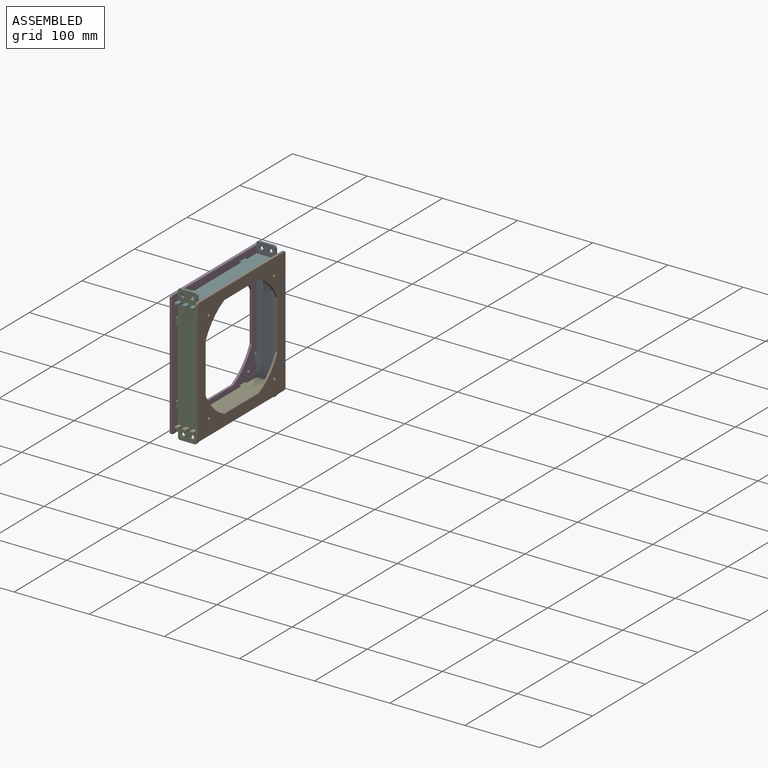
[diagram: assembled view]
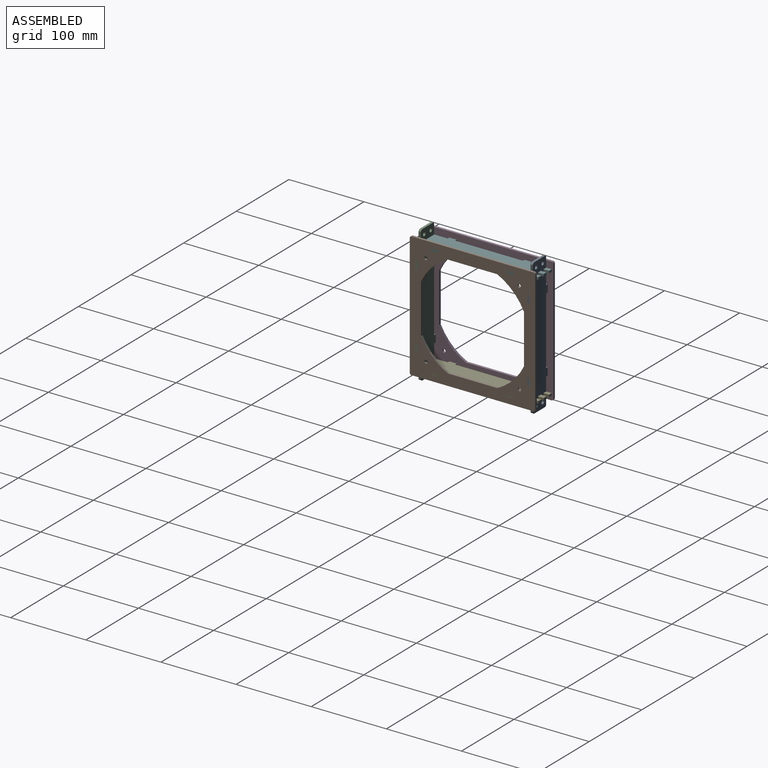
[diagram: assembled view, second angle]
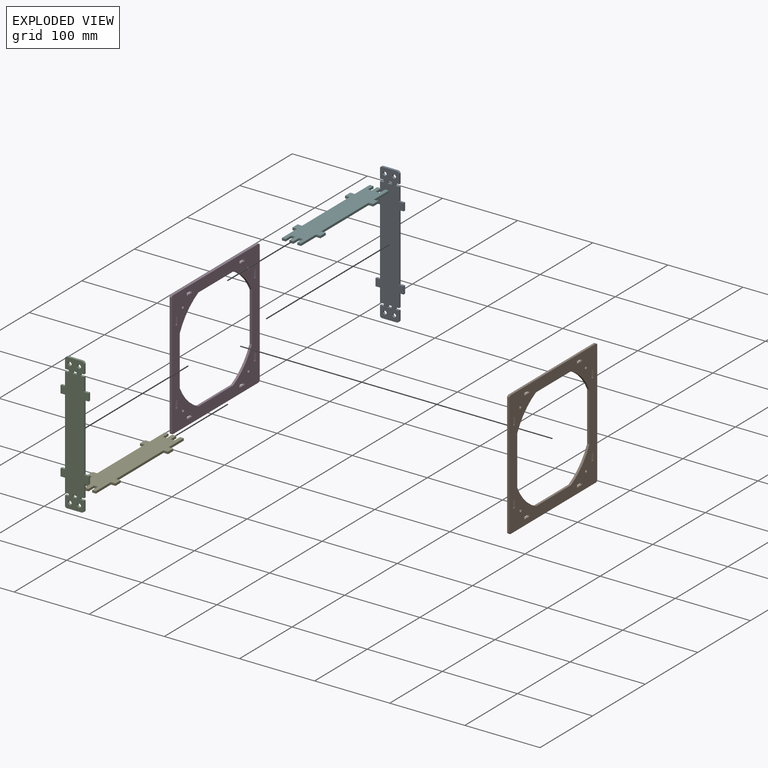
[diagram: exploded view]
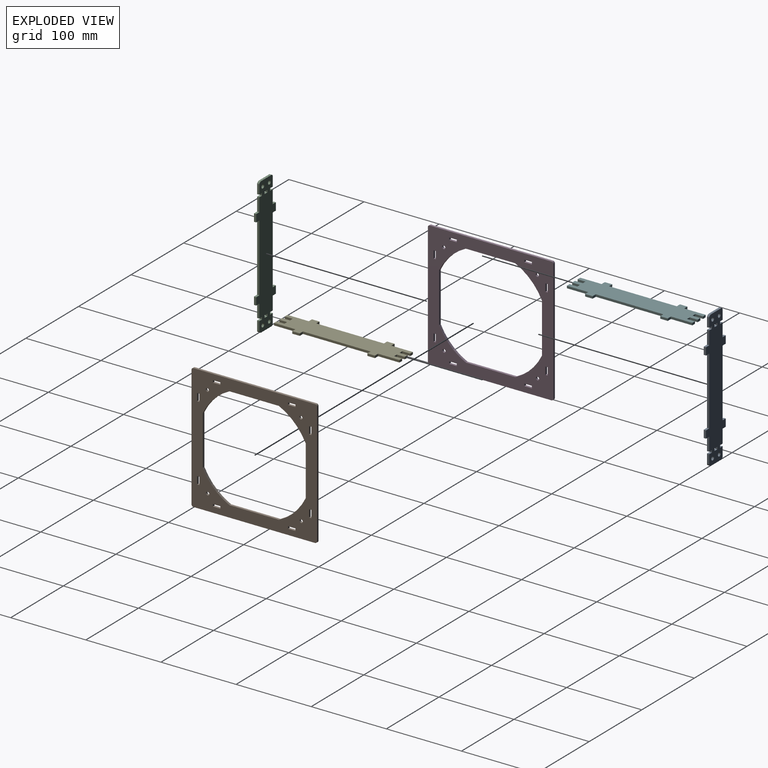
[diagram: exploded view, second angle]
ASSEMBLY  parts=6 mates=6
PART A: 54 faces, bbox 37.4x182.1x3 mm
  f0: plane 5.4x3mm, normal (0,-1,0), area 16.2mm2, adj f1,f46,f52,f53
  f1: plane 3x3mm, normal (-1,0,0), area 9mm2, adj f0,f2,f52,f53
  f2: plane 5.4x3mm, normal (0,1,0), area 16.2mm2, adj f1,f46,f52,f53
  f3: plane 12.56x3mm, normal (1,0,0), area 37.7mm2, adj f4,f47,f52,f53
  f4: plane 5x3mm, normal (0,1,0), area 15mm2, adj f3,f5,f52,f53
  f5: plane 3x3mm, normal (1,0,0), area 9mm2, adj f4,f6,f52,f53
  f6: plane 5x3mm, normal (0,-1,0), area 15mm2, adj f5,f7,f52,f53
  f7: plane 18x3mm, normal (1,0,0), area 54mm2, adj f6,f8,f52,f53
  f8: plane 6x3mm, normal (0,-1,0), area 18mm2, adj f7,f9,f52,f53
  f9: plane 10x3mm, normal (1,0,0), area 30mm2, adj f8,f10,f52,f53
  f10: plane 6x3mm, normal (0,1,0), area 18mm2, adj f9,f11,f52,f53
  f11: plane 90x3mm, normal (1,0,0), area 270mm2, adj f10,f12,f52,f53
  f12: plane 6x3mm, normal (0,-1,0), area 18mm2, adj f11,f13,f52,f53
  f13: plane 10x3mm, normal (1,0,0), area 30mm2, adj f12,f14,f52,f53
  f14: plane 6x3mm, normal (0,1,0), area 18mm2, adj f13,f15,f52,f53
  f15: plane 18x3mm, normal (1,0,0), area 54mm2, adj f14,f16,f52,f53
  f16: plane 5x3mm, normal (0,1,0), area 15mm2, adj f15,f17,f52,f53
  f17: plane 3x3mm, normal (1,0,0), area 9mm2, adj f16,f18,f52,f53
  f18: plane 5x3mm, normal (0,-1,0), area 15mm2, adj f17,f19,f52,f53
  f19: plane 12.56x3mm, normal (1,0,0), area 37.7mm2, adj f18,f20,f52,f53
  f20: cylinder r=4.02mm len=3mm, axis (0,0,-1), area 12mm2, adj f19,f21,f52,f53
  f21: plane 20x3mm, normal (0,1,0), area 60mm2, adj f20,f22,f52,f53
  f22: cylinder r=2.5mm len=3mm, axis (0,0,-1), area 11.8mm2, adj f21,f23,f52,f53
  f23: plane 12.56x3mm, normal (-1,0,0), area 37.7mm2, adj f22,f24,f52,f53
  f24: plane 5x3mm, normal (0,-1,0), area 15mm2, adj f23,f25,f52,f53
  f25: plane 3x3mm, normal (-1,0,0), area 9mm2, adj f24,f26,f52,f53
  f26: plane 5x3mm, normal (0,1,0), area 15mm2, adj f25,f27,f52,f53
  f27: plane 18x3mm, normal (-1,0,0), area 54mm2, adj f26,f28,f52,f53
  f28: plane 6x3mm, normal (0,1,0), area 18mm2, adj f27,f29,f52,f53
  f29: plane 10x3mm, normal (-1,0,0), area 30mm2, adj f28,f30,f52,f53
  f30: plane 6x3mm, normal (0,-1,0), area 18mm2, adj f29,f31,f52,f53
  f31: plane 90x3mm, normal (-1,0,0), area 270mm2, adj f30,f32,f52,f53
  f32: plane 6x3mm, normal (0,1,0), area 18mm2, adj f31,f33,f52,f53
  f33: plane 10x3mm, normal (-1,0,0), area 30mm2, adj f32,f34,f52,f53
  f34: plane 6x3mm, normal (0,-1,0), area 18mm2, adj f33,f35,f52,f53
  f35: plane 18x3mm, normal (-1,0,0), area 54mm2, adj f34,f36,f52,f53
  f36: plane 5x3mm, normal (0,-1,0), area 15mm2, adj f35,f37,f52,f53
  f37: plane 3x3mm, normal (-1,0,0), area 9mm2, adj f36,f38,f52,f53
  f38: plane 5x3mm, normal (0,1,0), area 15mm2, adj f37,f39,f52,f53
  f39: plane 12.56x3mm, normal (-1,0,0), area 37.7mm2, adj f38,f40,f52,f53
  f40: cylinder r=2.5mm len=3mm, axis (0,0,-1), area 11.8mm2, adj f39,f41,f52,f53
  f41: plane 20x3mm, normal (0,-1,0), area 60mm2, adj f40,f47,f52,f53
  f42: plane 5.4x3mm, normal (0,-1,0), area 16.2mm2, adj f43,f48,f52,f53
  f43: plane 3x3mm, normal (-1,0,0), area 9mm2, adj f42,f44,f52,f53
  f44: plane 5.4x3mm, normal (0,1,0), area 16.2mm2, adj f43,f48,f52,f53
  f45: cylinder r=2.5mm len=5mm, axis (0,0,-1), area 47.1mm2, adj f52,f53
  f46: plane 3x3mm, normal (1,0,0), area 9mm2, adj f0,f2,f52,f53
  f47: cylinder r=4.02mm len=3mm, axis (0,0,-1), area 12mm2, adj f3,f41,f52,f53
  f48: plane 3x3mm, normal (1,0,0), area 9mm2, adj f42,f44,f52,f53
  f49: cylinder r=2.5mm len=5mm, axis (0,0,-1), area 47.1mm2, adj f52,f53
  f50: cylinder r=2.5mm len=5mm, axis (0,0,-1), area 47.1mm2, adj f52,f53
  f51: cylinder r=2.5mm len=5mm, axis (0,0,-1), area 47.1mm2, adj f52,f53
  f52: plane 182.13x37.4mm, normal (0,0,1), area 4687.6mm2, adj f0,f1,f2,f3,f4,f5,f6,f7
  f53: plane 182.13x37.4mm, normal (0,0,-1), area 4687.6mm2, adj f0,f1,f2,f3,f4,f5,f6,f7
PART B: 54 faces, bbox 167x167x3 mm
  f0: plane 3x3mm, normal (1,0,0), area 9mm2, adj f1,f41,f52,f53
  f1: plane 10x3mm, normal (0,-1,0), area 30mm2, adj f0,f2,f52,f53
  f2: plane 3x3mm, normal (-1,0,0), area 9mm2, adj f1,f41,f52,f53
  f3: plane 3x3mm, normal (1,0,0), area 9mm2, adj f4,f42,f52,f53
  f4: plane 10x3mm, normal (0,-1,0), area 30mm2, adj f3,f5,f52,f53
  f5: plane 3x3mm, normal (-1,0,0), area 9mm2, adj f4,f42,f52,f53
  f6: plane 3x3mm, normal (1,0,0), area 9mm2, adj f7,f43,f52,f53
  f7: plane 10x3mm, normal (0,-1,0), area 30mm2, adj f6,f8,f52,f53
  f8: plane 3x3mm, normal (-1,0,0), area 9mm2, adj f7,f43,f52,f53
  f9: plane 10x3mm, normal (1,0,0), area 30mm2, adj f10,f44,f52,f53
  f10: plane 3x3mm, normal (0,-1,0), area 9mm2, adj f9,f11,f52,f53
  f11: plane 10x3mm, normal (-1,0,0), area 30mm2, adj f10,f44,f52,f53
  f12: cylinder r=2.5mm len=3mm, axis (0,0,-1), area 11.8mm2, adj f13,f45,f52,f53
  f13: plane 162x3mm, normal (0,-1,0), area 486mm2, adj f12,f14,f52,f53
  f14: cylinder r=2.5mm len=3mm, axis (0,0,-1), area 11.8mm2, adj f13,f15,f52,f53
  f15: plane 162x3mm, normal (1,0,0), area 486mm2, adj f14,f16,f52,f53
  f16: cylinder r=2.5mm len=3mm, axis (0,0,-1), area 11.8mm2, adj f15,f17,f52,f53
  f17: plane 162x3mm, normal (0,1,0), area 486mm2, adj f16,f18,f52,f53
  f18: cylinder r=2.5mm len=3mm, axis (0,0,-1), area 11.8mm2, adj f17,f45,f52,f53
  f19: plane 3x3mm, normal (0,1,0), area 9mm2, adj f20,f46,f52,f53
  f20: plane 10x3mm, normal (1,0,0), area 30mm2, adj f19,f21,f52,f53
  f21: plane 3x3mm, normal (0,-1,0), area 9mm2, adj f20,f46,f52,f53
  f22: plane 3x3mm, normal (0,1,0), area 9mm2, adj f23,f47,f52,f53
  f23: plane 10x3mm, normal (1,0,0), area 30mm2, adj f22,f24,f52,f53
  f24: plane 3x3mm, normal (0,-1,0), area 9mm2, adj f23,f47,f52,f53
  f25: plane 3x3mm, normal (0,1,0), area 9mm2, adj f26,f48,f52,f53
  f26: plane 10x3mm, normal (1,0,0), area 30mm2, adj f25,f27,f52,f53
  f27: plane 3x3mm, normal (0,-1,0), area 9mm2, adj f26,f48,f52,f53
  f28: plane 10x3mm, normal (0,1,0), area 30mm2, adj f29,f49,f52,f53
  f29: plane 3x3mm, normal (1,0,0), area 9mm2, adj f28,f30,f52,f53
  f30: plane 10x3mm, normal (0,-1,0), area 30mm2, adj f29,f49,f52,f53
  f31: cylinder r=76mm len=35.58mm, axis (0,0,-1), area 153.9mm2, adj f32,f50,f52,f53
  f32: plane 65.84x3mm, normal (0,1,0), area 197.5mm2, adj f31,f33,f52,f53
  f33: cylinder r=76mm len=35.58mm, axis (0,0,-1), area 153.9mm2, adj f32,f34,f52,f53
  f34: plane 65.84x3mm, normal (1,0,0), area 197.5mm2, adj f33,f35,f52,f53
  f35: cylinder r=76mm len=35.58mm, axis (0,0,-1), area 153.9mm2, adj f34,f36,f52,f53
  f36: plane 65.84x3mm, normal (0,-1,0), area 197.5mm2, adj f35,f37,f52,f53
  f37: cylinder r=76mm len=35.58mm, axis (0,0,-1), area 153.9mm2, adj f36,f50,f52,f53
  f38: cylinder r=2.12mm len=4.25mm, axis (0,0,-1), area 40.1mm2, adj f52,f53
  f39: cylinder r=2.12mm len=4.25mm, axis (0,0,-1), area 40.1mm2, adj f52,f53
  f40: cylinder r=2.12mm len=4.25mm, axis (0,0,-1), area 40.1mm2, adj f52,f53
  f41: plane 10x3mm, normal (0,1,0), area 30mm2, adj f0,f2,f52,f53
  f42: plane 10x3mm, normal (0,1,0), area 30mm2, adj f3,f5,f52,f53
  f43: plane 10x3mm, normal (0,1,0), area 30mm2, adj f6,f8,f52,f53
  f44: plane 3x3mm, normal (0,1,0), area 9mm2, adj f9,f11,f52,f53
  f45: plane 162x3mm, normal (-1,0,0), area 486mm2, adj f12,f18,f52,f53
  f46: plane 10x3mm, normal (-1,0,0), area 30mm2, adj f19,f21,f52,f53
  f47: plane 10x3mm, normal (-1,0,0), area 30mm2, adj f22,f24,f52,f53
  f48: plane 10x3mm, normal (-1,0,0), area 30mm2, adj f25,f27,f52,f53
  f49: plane 3x3mm, normal (-1,0,0), area 9mm2, adj f28,f30,f52,f53
  f50: plane 65.84x3mm, normal (-1,0,0), area 197.5mm2, adj f31,f37,f52,f53
  f51: cylinder r=2.12mm len=4.25mm, axis (0,0,-1), area 40.1mm2, adj f52,f53
  f52: plane 167x167mm, normal (0,0,1), area 10771.4mm2, adj f0,f1,f2,f3,f4,f5,f6,f7
  f53: plane 167x167mm, normal (0,0,-1), area 10771.4mm2, adj f0,f1,f2,f3,f4,f5,f6,f7
PART C: same geometry as A
PART D: same geometry as B
PART E: 38 faces, bbox 37.4x167x3 mm
  f0: plane 5.4x3mm, normal (0,-1,0), area 16.2mm2, adj f1,f35,f36,f37
  f1: plane 10.5x3mm, normal (1,0,0), area 31.5mm2, adj f0,f2,f36,f37
  f2: plane 5x3mm, normal (0,-1,0), area 15mm2, adj f1,f3,f36,f37
  f3: plane 10.5x3mm, normal (-1,0,0), area 31.5mm2, adj f2,f4,f36,f37
  f4: plane 5x3mm, normal (0,-1,0), area 15mm2, adj f3,f5,f36,f37
  f5: plane 28.5x3mm, normal (1,0,0), area 85.5mm2, adj f4,f6,f36,f37
  f6: plane 6x3mm, normal (0,-1,0), area 18mm2, adj f5,f7,f36,f37
  f7: plane 10x3mm, normal (1,0,0), area 30mm2, adj f6,f8,f36,f37
  f8: plane 6x3mm, normal (0,1,0), area 18mm2, adj f7,f9,f36,f37
  f9: plane 90x3mm, normal (1,0,0), area 270mm2, adj f8,f10,f36,f37
  f10: plane 6x3mm, normal (0,-1,0), area 18mm2, adj f9,f11,f36,f37
  f11: plane 10x3mm, normal (1,0,0), area 30mm2, adj f10,f12,f36,f37
  f12: plane 6x3mm, normal (0,1,0), area 18mm2, adj f11,f13,f36,f37
  f13: plane 28.5x3mm, normal (1,0,0), area 85.5mm2, adj f12,f14,f36,f37
  f14: plane 5x3mm, normal (0,1,0), area 15mm2, adj f13,f15,f36,f37
  f15: plane 10.5x3mm, normal (-1,0,0), area 31.5mm2, adj f14,f16,f36,f37
  f16: plane 5x3mm, normal (0,1,0), area 15mm2, adj f15,f17,f36,f37
  f17: plane 10.5x3mm, normal (1,0,0), area 31.5mm2, adj f16,f18,f36,f37
  f18: plane 5.4x3mm, normal (0,1,0), area 16.2mm2, adj f17,f19,f36,f37
  f19: plane 10.5x3mm, normal (-1,0,0), area 31.5mm2, adj f18,f20,f36,f37
  f20: plane 5x3mm, normal (0,1,0), area 15mm2, adj f19,f21,f36,f37
  f21: plane 10.5x3mm, normal (1,0,0), area 31.5mm2, adj f20,f22,f36,f37
  f22: plane 5x3mm, normal (0,1,0), area 15mm2, adj f21,f23,f36,f37
  f23: plane 28.5x3mm, normal (-1,0,0), area 85.5mm2, adj f22,f24,f36,f37
  f24: plane 6x3mm, normal (0,1,0), area 18mm2, adj f23,f25,f36,f37
  f25: plane 10x3mm, normal (-1,0,0), area 30mm2, adj f24,f26,f36,f37
  f26: plane 6x3mm, normal (0,-1,0), area 18mm2, adj f25,f27,f36,f37
  f27: plane 90x3mm, normal (-1,0,0), area 270mm2, adj f26,f28,f36,f37
  f28: plane 6x3mm, normal (0,1,0), area 18mm2, adj f27,f29,f36,f37
  f29: plane 10x3mm, normal (-1,0,0), area 30mm2, adj f28,f30,f36,f37
  f30: plane 6x3mm, normal (0,-1,0), area 18mm2, adj f29,f31,f36,f37
  f31: plane 28.5x3mm, normal (-1,0,0), area 85.5mm2, adj f30,f32,f36,f37
  f32: plane 5x3mm, normal (0,-1,0), area 15mm2, adj f31,f33,f36,f37
  f33: plane 10.5x3mm, normal (1,0,0), area 31.5mm2, adj f32,f34,f36,f37
  f34: plane 5x3mm, normal (0,-1,0), area 15mm2, adj f33,f35,f36,f37
  f35: plane 10.5x3mm, normal (-1,0,0), area 31.5mm2, adj f0,f34,f36,f37
  f36: plane 167x37.4mm, normal (0,0,1), area 4271.8mm2, adj f0,f1,f2,f3,f4,f5,f6,f7
  f37: plane 167x37.4mm, normal (0,0,-1), area 4271.8mm2, adj f0,f1,f2,f3,f4,f5,f6,f7
PART F: same geometry as E
PLACE A rot(axis=(1,0,0),90deg) t=(-10.12,170.31,-6.21)mm
PLACE B rot(axis=(0,-1,0),90deg) t=(56.76,94.31,-6.21)mm
PLACE C rot(axis=(1,0,0),90deg) t=(-10.12,21.31,-6.21)mm
PLACE D rot(axis=(0,-1,0),90deg) t=(22.36,94.31,-6.21)mm
PLACE E t=(100.18,94.31,-82.21)mm
PLACE F t=(100.18,94.31,66.79)mm
MATE slider D.f53 <-> E.f31  axis (-1,0,0) through (22.36,39.31,-82.21)mm
MATE fastened E.f34 <-> C.f53  axis (0,-1,0) through (30.36,21.31,-82.21)mm
MATE fastened F.f16 <-> A.f52  axis (0,1,0) through (45.76,167.31,66.79)mm
MATE slider B.f52 <-> E.f5  axis (1,0,0) through (53.76,39.31,-82.21)mm
MATE fastened F.f34 <-> C.f53  axis (0,-1,0) through (30.36,21.31,66.79)mm
MATE fastened A.f52 <-> E.f20  axis (0,1,0) through (30.36,167.31,-82.21)mm
